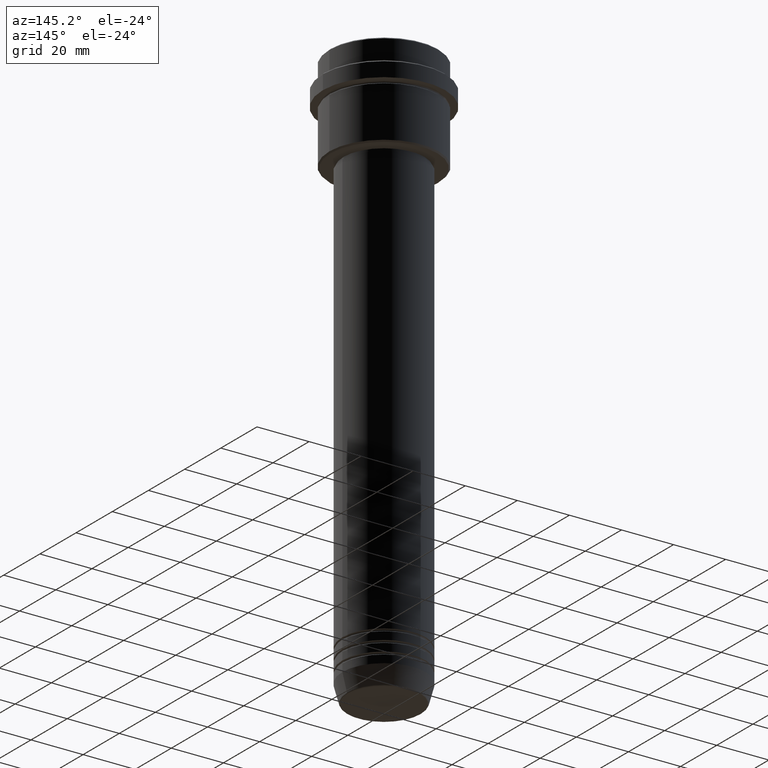
[diagram: clean part render]
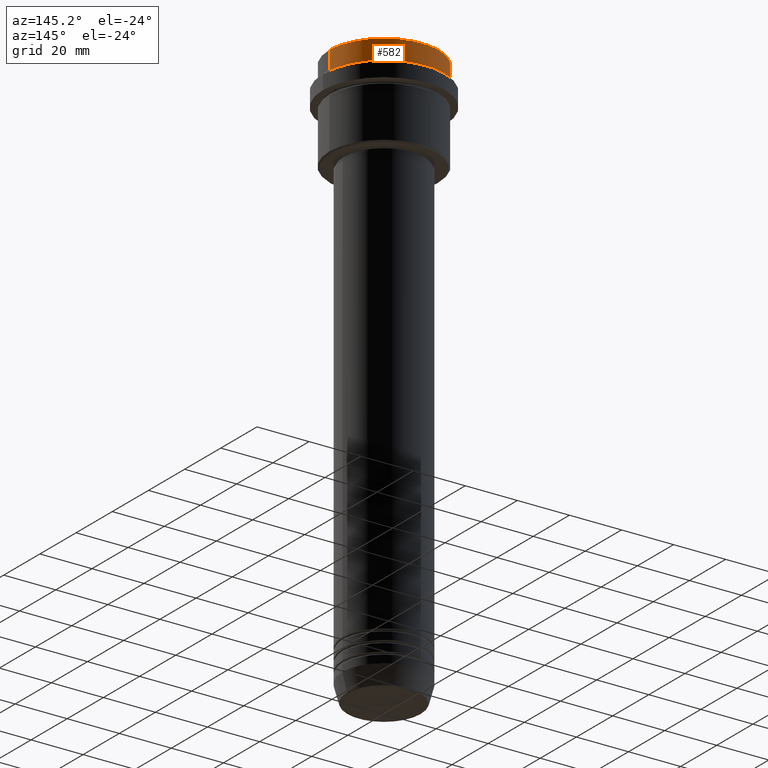
[diagram: same view with one face highlighted and labeled with its STEP entity id]
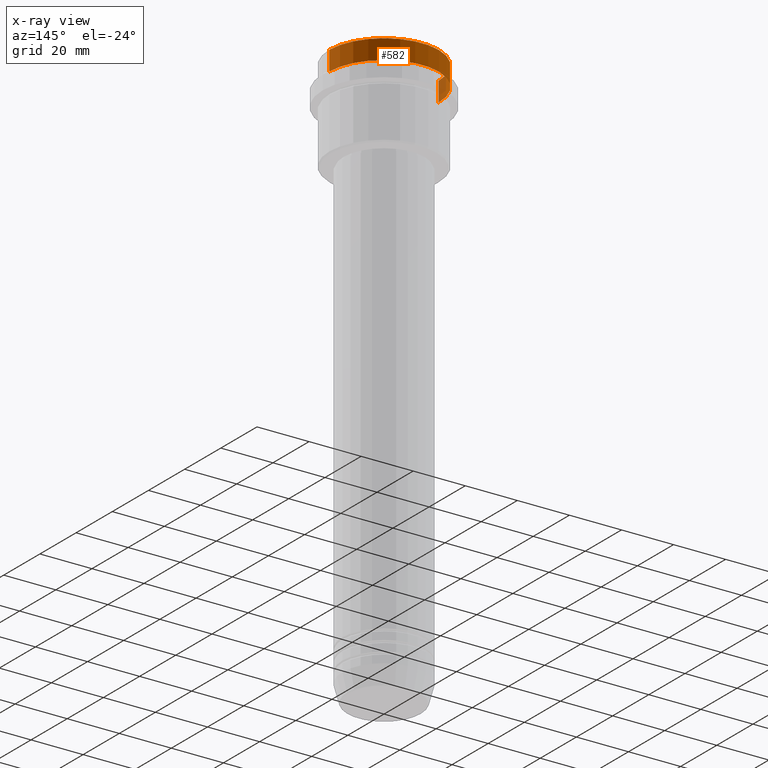
[diagram: x-ray of the same camera — body ghosted, the highlighted face saturated]
A machine part, auxiliary view. The second image highlights one B-rep face of the part: STEP entity #582.
The next image is the same camera in x-ray: the body ghosted, the highlighted face saturated — about 5% of this face is hidden behind the body in this view.
In plain terms, the highlighted cylindrical surface (partial cylindrical patch) has radius 21 mm, axis along (-0, -0, 1).
Its self-contained STEP definition (entity closure, byte-faithful):
#2 = VERTEX_POINT ( 'NONE', #117 ) ;
#49 = CIRCLE ( 'NONE', #523, 21.00000000000000000 ) ;
#60 = VERTEX_POINT ( 'NONE', #1341 ) ;
#117 = CARTESIAN_POINT ( 'NONE',  ( -21.00000000000000000, 2.571758278209441661E-15, -7.999999999999998224 ) ) ;
#126 = CARTESIAN_POINT ( 'NONE',  ( 0.000000000000000000, 0.000000000000000000, -0.5000000000000108802 ) ) ;
#186 = LINE ( 'NONE', #489, #505 ) ;
#245 = CYLINDRICAL_SURFACE ( 'NONE', #387, 21.00000000000000000 ) ;
#260 = VERTEX_POINT ( 'NONE', #1268 ) ;
#376 = ORIENTED_EDGE ( 'NONE', *, *, #1050, .T. ) ;
#387 = AXIS2_PLACEMENT_3D ( 'NONE', #581, #694, #702 ) ;
#415 = CARTESIAN_POINT ( 'NONE',  ( -21.00000000000000000, 2.571758278209441661E-15, -0.5000000000000108802 ) ) ;
#429 = DIRECTION ( 'NONE',  ( 1.000000000000000000, 0.000000000000000000, 0.000000000000000000 ) ) ;
#437 = VECTOR ( 'NONE', #914, 1000.000000000000000 ) ;
#438 = ORIENTED_EDGE ( 'NONE', *, *, #1339, .T. ) ;
#469 = CARTESIAN_POINT ( 'NONE',  ( -21.00000000000000000, 2.571758278209441661E-15, 0.000000000000000000 ) ) ;
#473 = VERTEX_POINT ( 'NONE', #415 ) ;
#489 = CARTESIAN_POINT ( 'NONE',  ( 21.00000000000000000, 0.000000000000000000, 0.000000000000000000 ) ) ;
#505 = VECTOR ( 'NONE', #630, 1000.000000000000000 ) ;
#523 = AXIS2_PLACEMENT_3D ( 'NONE', #126, #560, #1336 ) ;
#538 = CARTESIAN_POINT ( 'NONE',  ( 0.000000000000000000, 0.000000000000000000, -7.999999999999998224 ) ) ;
#560 = DIRECTION ( 'NONE',  ( 0.000000000000000000, 0.000000000000000000, -1.000000000000000000 ) ) ;
#581 = CARTESIAN_POINT ( 'NONE',  ( 0.000000000000000000, 0.000000000000000000, 0.000000000000000000 ) ) ;
#582 = ADVANCED_FACE ( 'NONE', ( #1242 ), #245, .T. ) ;
#630 = DIRECTION ( 'NONE',  ( -0.000000000000000000, -0.000000000000000000, 1.000000000000000000 ) ) ;
#671 = ORIENTED_EDGE ( 'NONE', *, *, #1413, .T. ) ;
#694 = DIRECTION ( 'NONE',  ( -0.000000000000000000, -0.000000000000000000, 1.000000000000000000 ) ) ;
#702 = DIRECTION ( 'NONE',  ( 1.000000000000000000, 0.000000000000000000, 0.000000000000000000 ) ) ;
#740 = EDGE_CURVE ( 'NONE', #60, #260, #186, .T. ) ;
#832 = CIRCLE ( 'NONE', #904, 21.00000000000000000 ) ;
#904 = AXIS2_PLACEMENT_3D ( 'NONE', #538, #1182, #429 ) ;
#914 = DIRECTION ( 'NONE',  ( -0.000000000000000000, -0.000000000000000000, 1.000000000000000000 ) ) ;
#1050 = EDGE_CURVE ( 'NONE', #2, #473, #1113, .T. ) ;
#1073 = EDGE_LOOP ( 'NONE', ( #438, #376, #671, #1337 ) ) ;
#1113 = LINE ( 'NONE', #469, #437 ) ;
#1182 = DIRECTION ( 'NONE',  ( -0.000000000000000000, -0.000000000000000000, 1.000000000000000000 ) ) ;
#1242 = FACE_OUTER_BOUND ( 'NONE', #1073, .T. ) ;
#1268 = CARTESIAN_POINT ( 'NONE',  ( 21.00000000000000000, 0.000000000000000000, -0.5000000000000108802 ) ) ;
#1336 = DIRECTION ( 'NONE',  ( 1.000000000000000000, 0.000000000000000000, 0.000000000000000000 ) ) ;
#1337 = ORIENTED_EDGE ( 'NONE', *, *, #740, .F. ) ;
#1339 = EDGE_CURVE ( 'NONE', #60, #2, #832, .T. ) ;
#1341 = CARTESIAN_POINT ( 'NONE',  ( 21.00000000000000000, 0.000000000000000000, -7.999999999999998224 ) ) ;
#1413 = EDGE_CURVE ( 'NONE', #473, #260, #49, .T. ) ;